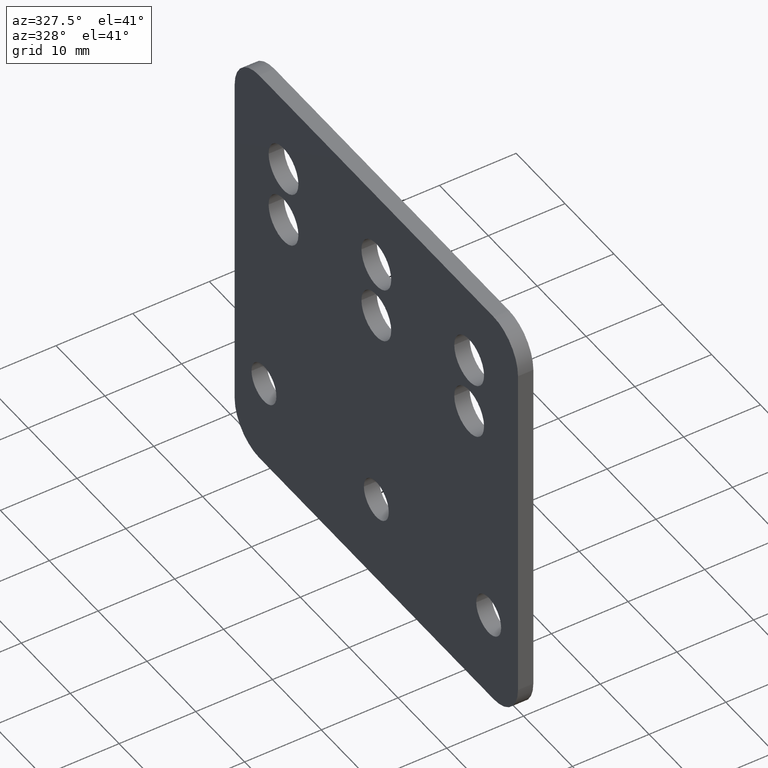
[diagram: clean part render]
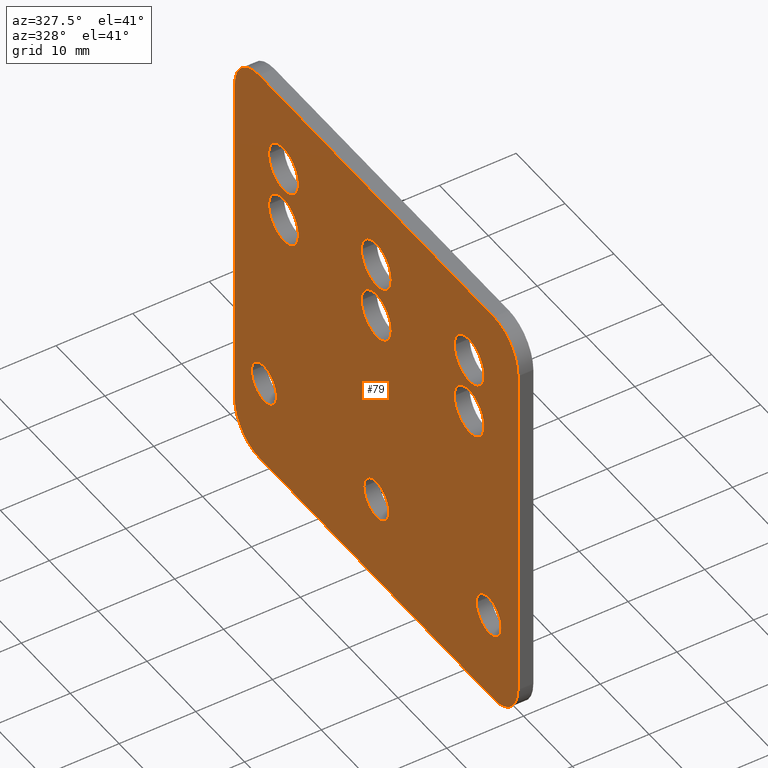
[diagram: same view with one face highlighted and labeled with its STEP entity id]
A machine part, auxiliary view. The second image highlights one B-rep face of the part: STEP entity #79.
In plain terms, the highlighted planar face has unit normal (-1, 0, 0).
Its self-contained STEP definition (entity closure, byte-faithful):
#79=ADVANCED_FACE('',(#170,#171,#172,#173,#174,#175,#176,#177,#178,#179),#180,.T.);
#170=FACE_BOUND('',#261,.T.);
#171=FACE_BOUND('',#262,.T.);
#172=FACE_BOUND('',#263,.T.);
#173=FACE_BOUND('',#264,.T.);
#174=FACE_BOUND('',#265,.T.);
#175=FACE_BOUND('',#266,.T.);
#176=FACE_BOUND('',#267,.T.);
#177=FACE_BOUND('',#268,.T.);
#178=FACE_BOUND('',#269,.T.);
#179=FACE_OUTER_BOUND('',#270,.T.);
#180=PLANE('',#271);
#261=EDGE_LOOP('',(#413));
#262=EDGE_LOOP('',(#414));
#263=EDGE_LOOP('',(#415));
#264=EDGE_LOOP('',(#416));
#265=EDGE_LOOP('',(#417));
#266=EDGE_LOOP('',(#418));
#267=EDGE_LOOP('',(#419));
#268=EDGE_LOOP('',(#420));
#269=EDGE_LOOP('',(#421));
#270=EDGE_LOOP('',(#422,#423,#424,#425,#426,#427,#428,#429));
#271=AXIS2_PLACEMENT_3D('',#430,#431,#432);
#413=ORIENTED_EDGE('',*,*,#434,.T.);
#414=ORIENTED_EDGE('',*,*,#442,.T.);
#415=ORIENTED_EDGE('',*,*,#445,.T.);
#416=ORIENTED_EDGE('',*,*,#492,.T.);
#417=ORIENTED_EDGE('',*,*,#459,.T.);
#418=ORIENTED_EDGE('',*,*,#451,.T.);
#419=ORIENTED_EDGE('',*,*,#448,.T.);
#420=ORIENTED_EDGE('',*,*,#475,.T.);
#421=ORIENTED_EDGE('',*,*,#479,.T.);
#422=ORIENTED_EDGE('',*,*,#439,.T.);
#423=ORIENTED_EDGE('',*,*,#464,.T.);
#424=ORIENTED_EDGE('',*,*,#477,.T.);
#425=ORIENTED_EDGE('',*,*,#456,.T.);
#426=ORIENTED_EDGE('',*,*,#482,.T.);
#427=ORIENTED_EDGE('',*,*,#490,.T.);
#428=ORIENTED_EDGE('',*,*,#485,.T.);
#429=ORIENTED_EDGE('',*,*,#488,.T.);
#430=CARTESIAN_POINT('',(-1.99999999999978,-47.0000000000033,-6.50000000000175));
#431=DIRECTION('',(-1.0,0.0,0.0));
#432=DIRECTION('',(0.0,-1.0,0.0));
#434=EDGE_CURVE('',#495,#495,#496,.T.);
#439=EDGE_CURVE('',#505,#503,#506,.T.);
#442=EDGE_CURVE('',#509,#509,#510,.T.);
#445=EDGE_CURVE('',#514,#514,#515,.T.);
#448=EDGE_CURVE('',#519,#519,#520,.T.);
#451=EDGE_CURVE('',#524,#524,#525,.T.);
#456=EDGE_CURVE('',#534,#532,#535,.T.);
#459=EDGE_CURVE('',#538,#538,#539,.T.);
#464=EDGE_CURVE('',#503,#545,#547,.T.);
#475=EDGE_CURVE('',#564,#564,#565,.T.);
#477=EDGE_CURVE('',#545,#534,#567,.T.);
#479=EDGE_CURVE('',#569,#569,#570,.T.);
#482=EDGE_CURVE('',#532,#572,#574,.T.);
#485=EDGE_CURVE('',#578,#576,#579,.T.);
#488=EDGE_CURVE('',#576,#505,#582,.T.);
#490=EDGE_CURVE('',#572,#578,#584,.T.);
#492=EDGE_CURVE('',#586,#586,#587,.T.);
#495=VERTEX_POINT('',#590);
#496=CIRCLE('',#591,3.05);
#503=VERTEX_POINT('',#598);
#505=VERTEX_POINT('',#601);
#506=CIRCLE('',#602,5.0);
#509=VERTEX_POINT('',#606);
#510=CIRCLE('',#607,2.55);
#514=VERTEX_POINT('',#611);
#515=CIRCLE('',#612,2.55);
#519=VERTEX_POINT('',#616);
#520=CIRCLE('',#617,3.05);
#524=VERTEX_POINT('',#621);
#525=CIRCLE('',#622,3.05);
#532=VERTEX_POINT('',#630);
#534=VERTEX_POINT('',#633);
#535=LINE('',#634,#635);
#538=VERTEX_POINT('',#639);
#539=CIRCLE('',#640,3.05);
#545=VERTEX_POINT('',#647);
#547=LINE('',#650,#651);
#564=VERTEX_POINT('',#670);
#565=CIRCLE('',#671,3.05);
#567=CIRCLE('',#673,5.0);
#569=VERTEX_POINT('',#675);
#570=CIRCLE('',#676,3.05);
#572=VERTEX_POINT('',#678);
#574=CIRCLE('',#681,5.0);
#576=VERTEX_POINT('',#683);
#578=VERTEX_POINT('',#686);
#579=CIRCLE('',#687,5.0);
#582=LINE('',#691,#692);
#584=LINE('',#694,#695);
#586=VERTEX_POINT('',#697);
#587=CIRCLE('',#698,2.55);
#590=CARTESIAN_POINT('',(-1.99999999999978,-0.950000000003151,34.1999999999976));
#591=AXIS2_PLACEMENT_3D('',#700,#701,#702);
#598=CARTESIAN_POINT('',(-1.99999999999978,-52.0000000000032,-6.50000000000175));
#601=CARTESIAN_POINT('',(-1.99999999999978,-47.0000000000033,-11.5000000000025));
#602=AXIS2_PLACEMENT_3D('',#710,#711,#712);
#606=CARTESIAN_POINT('',(-1.99999999999978,2.54999999999757,-1.79543879763599E-012));
#607=AXIS2_PLACEMENT_3D('',#714,#715,#716);
#611=CARTESIAN_POINT('',(-1.99999999999978,-43.4500000000027,-1.79543879763599E-012));
#612=AXIS2_PLACEMENT_3D('',#720,#721,#722);
#616=CARTESIAN_POINT('',(-1.99999999999978,-0.950000000003151,26.7999999999979));
#617=AXIS2_PLACEMENT_3D('',#726,#727,#728);
#621=CARTESIAN_POINT('',(-1.99999999999978,-19.9500000000033,26.7999999999979));
#622=AXIS2_PLACEMENT_3D('',#732,#733,#734);
#630=CARTESIAN_POINT('',(-1.99999999999978,0.999999999996746,44.1999999999982));
#633=CARTESIAN_POINT('',(-1.99999999999978,-47.0000000000033,44.1999999999982));
#634=CARTESIAN_POINT('',(-1.99999999999978,-47.0000000000033,44.1999999999982));
#635=VECTOR('',#740,1.0);
#639=CARTESIAN_POINT('',(-1.99999999999978,-38.9500000000025,26.7999999999979));
#640=AXIS2_PLACEMENT_3D('',#742,#743,#744);
#647=CARTESIAN_POINT('',(-1.99999999999978,-52.0000000000032,39.1999999999983));
#650=CARTESIAN_POINT('',(-1.99999999999978,-52.0000000000032,-6.50000000000175));
#651=VECTOR('',#750,1.0);
#670=CARTESIAN_POINT('',(-1.99999999999978,-38.9500000000025,34.1999999999976));
#671=AXIS2_PLACEMENT_3D('',#771,#772,#773);
#673=AXIS2_PLACEMENT_3D('',#774,#775,#776);
#675=CARTESIAN_POINT('',(-1.99999999999978,-19.9500000000033,34.1999999999976));
#676=AXIS2_PLACEMENT_3D('',#777,#778,#779);
#678=CARTESIAN_POINT('',(-1.99999999999978,5.99999999999664,39.1999999999983));
#681=AXIS2_PLACEMENT_3D('',#781,#782,#783);
#683=CARTESIAN_POINT('',(-1.99999999999978,0.999999999996746,-11.5000000000025));
#686=CARTESIAN_POINT('',(-1.99999999999978,5.99999999999664,-6.50000000000175));
#687=AXIS2_PLACEMENT_3D('',#785,#786,#787);
#691=CARTESIAN_POINT('',(-1.99999999999978,0.999999999996746,-11.5000000000025));
#692=VECTOR('',#789,1.0);
#694=CARTESIAN_POINT('',(-1.99999999999978,5.99999999999664,39.1999999999983));
#695=VECTOR('',#790,1.0);
#697=CARTESIAN_POINT('',(-1.99999999999978,-20.450000000003,-1.79543879763599E-012));
#698=AXIS2_PLACEMENT_3D('',#791,#792,#793);
#700=CARTESIAN_POINT('',(-1.99999999999978,-4.00000000000315,34.1999999999976));
#701=DIRECTION('',(1.0,0.0,0.0));
#702=DIRECTION('',(0.0,1.0,0.0));
#710=CARTESIAN_POINT('',(-1.99999999999978,-47.0000000000033,-6.50000000000175));
#711=DIRECTION('',(-1.0,0.0,0.0));
#712=DIRECTION('',(0.0,-1.0,0.0));
#714=CARTESIAN_POINT('',(-1.99999999999978,-2.7000970903579E-012,-1.79543879763599E-012));
#715=DIRECTION('',(1.0,0.0,0.0));
#716=DIRECTION('',(0.0,1.0,0.0));
#720=CARTESIAN_POINT('',(-1.99999999999978,-46.000000000003,-1.79543879763599E-012));
#721=DIRECTION('',(1.0,0.0,0.0));
#722=DIRECTION('',(0.0,1.0,0.0));
#726=CARTESIAN_POINT('',(-1.99999999999978,-4.00000000000315,26.7999999999979));
#727=DIRECTION('',(1.0,0.0,0.0));
#728=DIRECTION('',(0.0,1.0,0.0));
#732=CARTESIAN_POINT('',(-1.99999999999978,-23.0000000000033,26.7999999999979));
#733=DIRECTION('',(1.0,0.0,0.0));
#734=DIRECTION('',(0.0,1.0,0.0));
#740=DIRECTION('',(0.0,1.0,0.0));
#742=CARTESIAN_POINT('',(-1.99999999999978,-42.0000000000025,26.7999999999979));
#743=DIRECTION('',(1.0,0.0,0.0));
#744=DIRECTION('',(0.0,1.0,0.0));
#750=DIRECTION('',(0.0,0.0,1.0));
#771=CARTESIAN_POINT('',(-1.99999999999978,-42.0000000000025,34.1999999999976));
#772=DIRECTION('',(1.0,0.0,0.0));
#773=DIRECTION('',(0.0,1.0,0.0));
#774=CARTESIAN_POINT('',(-1.99999999999978,-47.0000000000033,39.1999999999983));
#775=DIRECTION('',(-1.0,0.0,0.0));
#776=DIRECTION('',(0.0,-1.0,0.0));
#777=CARTESIAN_POINT('',(-1.99999999999978,-23.0000000000033,34.1999999999976));
#778=DIRECTION('',(1.0,0.0,0.0));
#779=DIRECTION('',(0.0,1.0,0.0));
#781=CARTESIAN_POINT('',(-1.99999999999978,0.999999999996746,39.1999999999983));
#782=DIRECTION('',(-1.0,0.0,0.0));
#783=DIRECTION('',(0.0,-1.0,0.0));
#785=CARTESIAN_POINT('',(-1.99999999999978,0.999999999996746,-6.50000000000175));
#786=DIRECTION('',(-1.0,0.0,0.0));
#787=DIRECTION('',(0.0,-1.0,0.0));
#789=DIRECTION('',(0.0,-1.0,0.0));
#790=DIRECTION('',(0.0,0.0,-1.0));
#791=CARTESIAN_POINT('',(-1.99999999999978,-23.0000000000033,-1.79543879763599E-012));
#792=DIRECTION('',(1.0,0.0,0.0));
#793=DIRECTION('',(0.0,1.0,0.0));